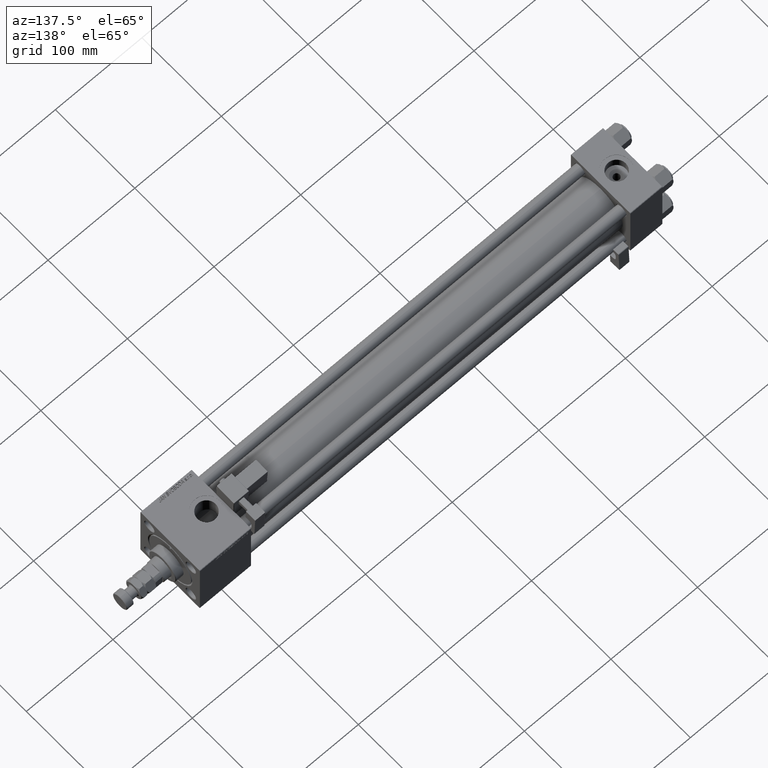
[diagram: clean part render]
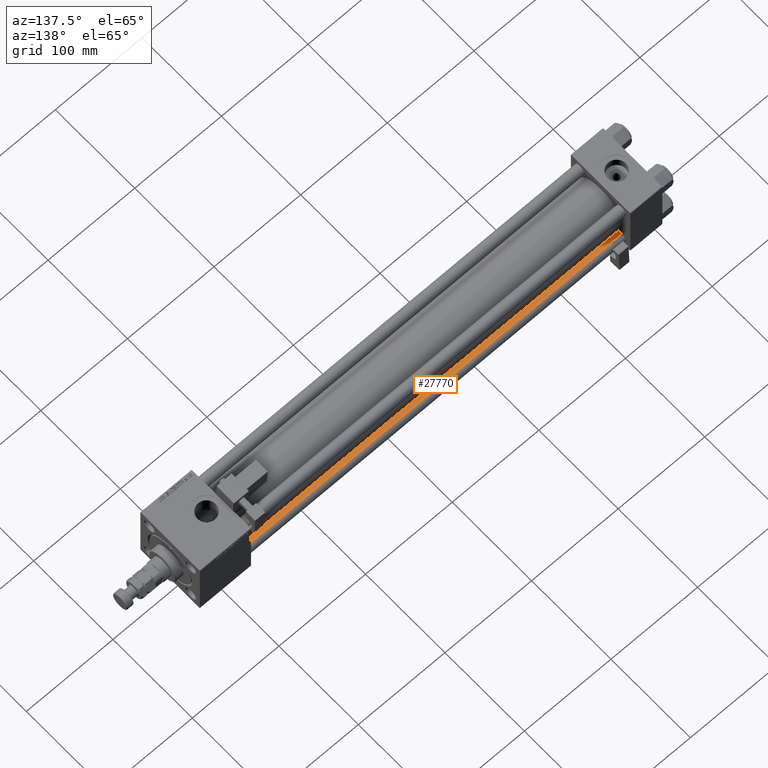
[diagram: same view with one face highlighted and labeled with its STEP entity id]
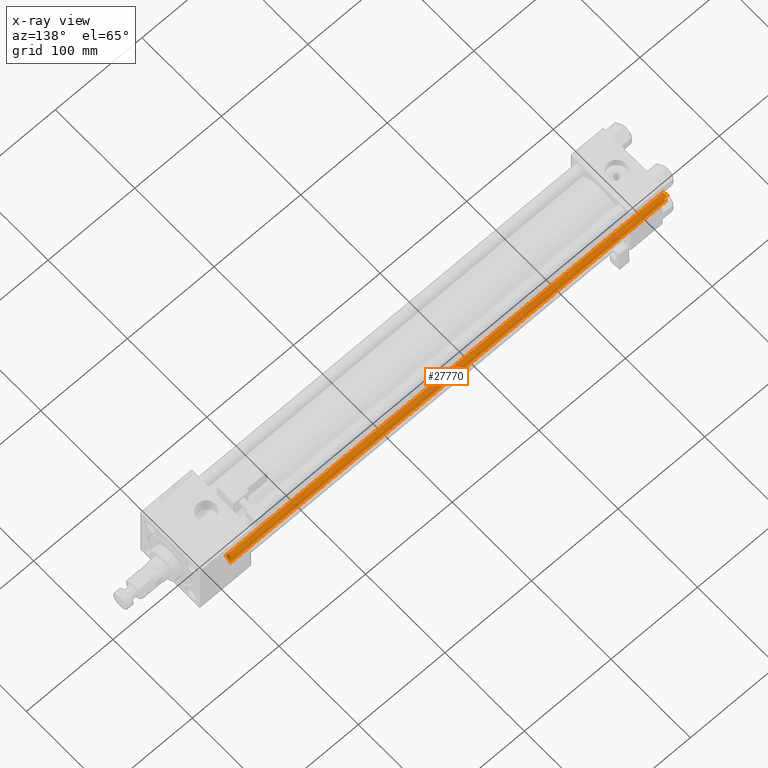
[diagram: x-ray of the same camera — body ghosted, the highlighted face saturated]
A machine part, auxiliary view. The second image highlights one B-rep face of the part: STEP entity #27770.
The next image is the same camera in x-ray: the body ghosted, the highlighted face saturated — about 0% of this face is hidden behind the body in this view.
In plain terms, the highlighted cylindrical surface (edge-blend (fillet) strip) has radius 6 mm, axis along (1, -0, 0).
Its self-contained STEP definition (entity closure, byte-faithful):
#5850 = DIRECTION ( 'NONE',  ( -0.000000000000000000, -0.000000000000000000, -1.000000000000000000 ) ) ;
#6007 = CARTESIAN_POINT ( 'NONE',  ( 6.000000000000000888, 7.347880794884120722E-16, 503.5000000000000568 ) ) ;
#6032 = CIRCLE ( 'NONE', #36718, 6.000000000000000888 ) ;
#7794 = AXIS2_PLACEMENT_3D ( 'NONE', #38790, #17105, #33843 ) ;
#9247 = EDGE_CURVE ( 'NONE', #9789, #36488, #6032, .T. ) ;
#9789 = VERTEX_POINT ( 'NONE', #30795 ) ;
#9950 = LINE ( 'NONE', #13534, #47730 ) ;
#10307 = DIRECTION ( 'NONE',  ( -0.000000000000000000, -0.000000000000000000, 1.000000000000000000 ) ) ;
#12966 = DIRECTION ( 'NONE',  ( -0.000000000000000000, -0.000000000000000000, -1.000000000000000000 ) ) ;
#13103 = ORIENTED_EDGE ( 'NONE', *, *, #24422, .F. ) ;
#13152 = ORIENTED_EDGE ( 'NONE', *, *, #9247, .T. ) ;
#13534 = CARTESIAN_POINT ( 'NONE',  ( 6.000000000000000888, 7.347880794884120722E-16, 504.0000000000000000 ) ) ;
#13894 = CARTESIAN_POINT ( 'NONE',  ( 0.000000000000000000, 0.000000000000000000, 0.5000000000001669775 ) ) ;
#15131 = CARTESIAN_POINT ( 'NONE',  ( 0.000000000000000000, 0.000000000000000000, 504.0000000000000000 ) ) ;
#15406 = DIRECTION ( 'NONE',  ( -0.000000000000000000, -0.000000000000000000, -1.000000000000000000 ) ) ;
#16876 = CARTESIAN_POINT ( 'NONE',  ( -6.000000000000000888, 0.000000000000000000, 503.5000000000000568 ) ) ;
#17105 = DIRECTION ( 'NONE',  ( 0.000000000000000000, 0.000000000000000000, -1.000000000000000000 ) ) ;
#21653 = AXIS2_PLACEMENT_3D ( 'NONE', #15131, #15406, #52151 ) ;
#23091 = CYLINDRICAL_SURFACE ( 'NONE', #21653, 6.000000000000000888 ) ;
#23844 = VECTOR ( 'NONE', #12966, 1000.000000000000000 ) ;
#24422 = EDGE_CURVE ( 'NONE', #34881, #36488, #9950, .T. ) ;
#26385 = ORIENTED_EDGE ( 'NONE', *, *, #41761, .T. ) ;
#27747 = FACE_OUTER_BOUND ( 'NONE', #39729, .T. ) ;
#27770 = ADVANCED_FACE ( 'NONE', ( #27747 ), #23091, .T. ) ;
#28630 = CARTESIAN_POINT ( 'NONE',  ( 6.000000000000000888, 7.347880794884120722E-16, 0.5000000000001669775 ) ) ;
#30795 = CARTESIAN_POINT ( 'NONE',  ( -6.000000000000000888, 0.000000000000000000, 0.5000000000001669775 ) ) ;
#31120 = EDGE_CURVE ( 'NONE', #34881, #45416, #39325, .T. ) ;
#33843 = DIRECTION ( 'NONE',  ( 1.000000000000000000, 0.000000000000000000, 0.000000000000000000 ) ) ;
#34881 = VERTEX_POINT ( 'NONE', #6007 ) ;
#36488 = VERTEX_POINT ( 'NONE', #28630 ) ;
#36718 = AXIS2_PLACEMENT_3D ( 'NONE', #13894, #10307, #50930 ) ;
#38774 = LINE ( 'NONE', #46171, #23844 ) ;
#38790 = CARTESIAN_POINT ( 'NONE',  ( 0.000000000000000000, 0.000000000000000000, 503.5000000000000568 ) ) ;
#39325 = CIRCLE ( 'NONE', #7794, 6.000000000000000888 ) ;
#39729 = EDGE_LOOP ( 'NONE', ( #13103, #43975, #26385, #13152 ) ) ;
#41761 = EDGE_CURVE ( 'NONE', #45416, #9789, #38774, .T. ) ;
#43975 = ORIENTED_EDGE ( 'NONE', *, *, #31120, .T. ) ;
#45416 = VERTEX_POINT ( 'NONE', #16876 ) ;
#46171 = CARTESIAN_POINT ( 'NONE',  ( -6.000000000000000888, 0.000000000000000000, 504.0000000000000000 ) ) ;
#47730 = VECTOR ( 'NONE', #5850, 1000.000000000000000 ) ;
#50930 = DIRECTION ( 'NONE',  ( 1.000000000000000000, 0.000000000000000000, 0.000000000000000000 ) ) ;
#52151 = DIRECTION ( 'NONE',  ( -1.000000000000000000, 0.000000000000000000, 0.000000000000000000 ) ) ;